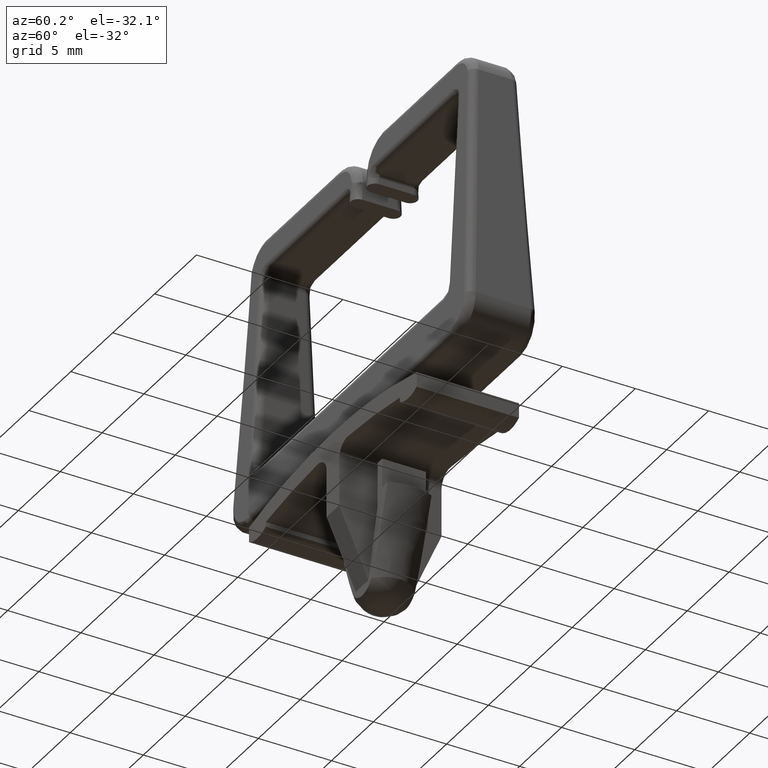
[diagram: clean part render]
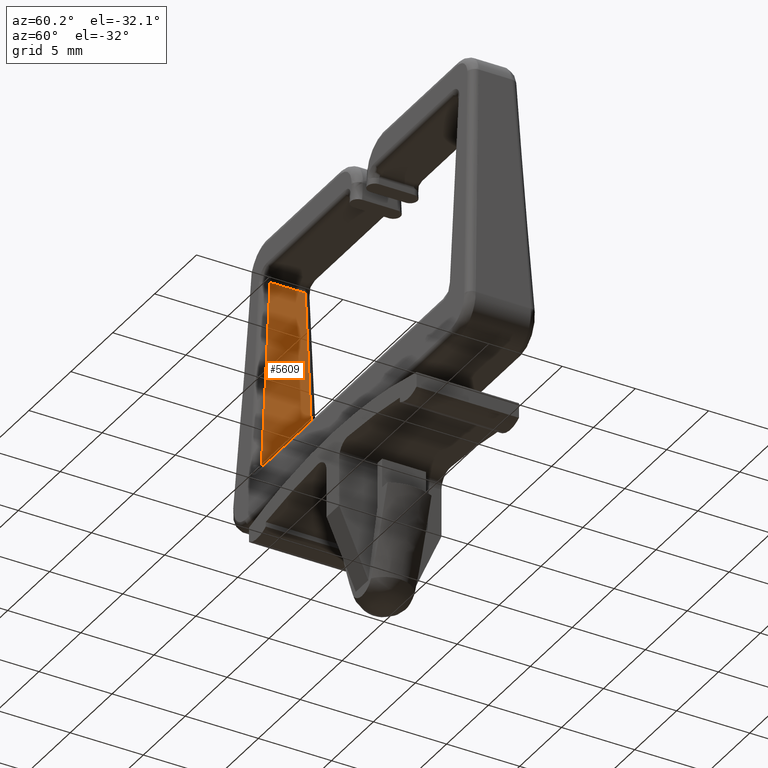
[diagram: same view with one face highlighted and labeled with its STEP entity id]
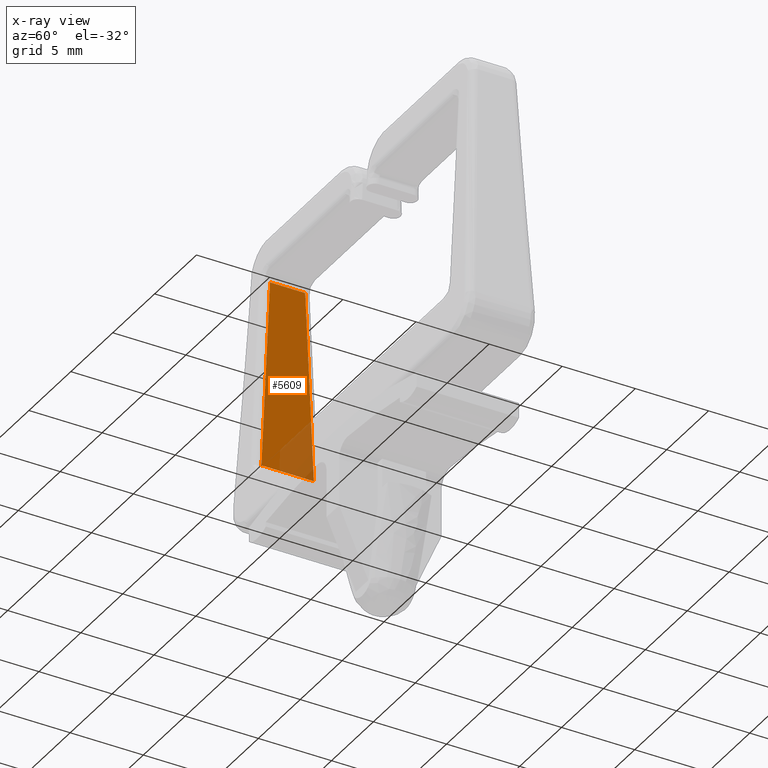
[diagram: x-ray of the same camera — body ghosted, the highlighted face saturated]
A machine part, auxiliary view. The second image highlights one B-rep face of the part: STEP entity #5609.
The next image is the same camera in x-ray: the body ghosted, the highlighted face saturated — about 16% of this face is hidden behind the body in this view.
In plain terms, the highlighted face is a freeform B-spline surface patch.
Its self-contained STEP definition (entity closure, byte-faithful):
#1271=CARTESIAN_POINT('',(-11.500000000000000,1.791121213136070,0.500000000000000));
#1272=VERTEX_POINT('',#1271);
#1338=CARTESIAN_POINT('',(-11.500000000000000,1.200479380177754,13.500000000000000));
#1339=VERTEX_POINT('',#1338);
#1355=CARTESIAN_POINT('',(-11.500000000000000,1.791121213136070,0.500000000000000));
#1356=CARTESIAN_POINT('',(-11.500000000000000,1.200479380177754,13.500000000000000));
#1357=QUASI_UNIFORM_CURVE('',1,(#1355,#1356),.UNSPECIFIED.,.F.,.U.);
#1358=EDGE_CURVE('',#1272,#1339,#1357,.T.);
#2888=CARTESIAN_POINT('',(-11.500000000000000,-1.200478505190450,13.500000000000000));
#2889=VERTEX_POINT('',#2888);
#2953=CARTESIAN_POINT('',(-11.500000000000000,-1.791120984124930,0.500000000000000));
#2954=VERTEX_POINT('',#2953);
#2970=CARTESIAN_POINT('',(-11.500000000000000,-1.200478505190450,13.500000000000000));
#2971=CARTESIAN_POINT('',(-11.500000000000000,-1.791120984124930,0.500000000000000));
#2972=QUASI_UNIFORM_CURVE('',1,(#2970,#2971),.UNSPECIFIED.,.F.,.U.);
#2973=EDGE_CURVE('',#2889,#2954,#2972,.T.);
#5583=CARTESIAN_POINT('',(-11.500000000000000,1.200479380177754,13.500000000000000));
#5584=CARTESIAN_POINT('',(-11.500000000000000,-1.200478505190450,13.500000000000000));
#5585=QUASI_UNIFORM_CURVE('',1,(#5583,#5584),.UNSPECIFIED.,.F.,.U.);
#5586=EDGE_CURVE('',#1339,#2889,#5585,.T.);
#5594=CARTESIAN_POINT('',(-11.500000000000000,-1.970054008562563,14.149349974803480));
#5595=CARTESIAN_POINT('',(-11.500000000000000,-1.970054008562563,-0.149350323490649));
#5596=CARTESIAN_POINT('',(-11.500000000000000,1.970054301629185,14.149349974803480));
#5597=CARTESIAN_POINT('',(-11.500000000000000,1.970054301629185,-0.149350323490649));
#5598=B_SPLINE_SURFACE_WITH_KNOTS('',1,1,((#5594,#5596),(#5595,#5597)),.UNSPECIFIED.,.F.,.F.,.U.,(2,2),(2,2),(0.0,14.298700298294129),(0.0,3.940108310191748),.UNSPECIFIED.);
#5599=CARTESIAN_POINT('',(-11.500000000000000,1.791121213136070,0.500000000000000));
#5600=CARTESIAN_POINT('',(-11.500000000000000,-1.791120984124930,0.500000000000000));
#5601=QUASI_UNIFORM_CURVE('',1,(#5599,#5600),.UNSPECIFIED.,.F.,.U.);
#5602=EDGE_CURVE('',#1272,#2954,#5601,.T.);
#5603=ORIENTED_EDGE('',*,*,#5602,.F.);
#5604=ORIENTED_EDGE('',*,*,#1358,.T.);
#5605=ORIENTED_EDGE('',*,*,#5586,.T.);
#5606=ORIENTED_EDGE('',*,*,#2973,.T.);
#5607=EDGE_LOOP('',(#5603,#5604,#5605,#5606));
#5608=FACE_OUTER_BOUND('',#5607,.T.);
#5609=ADVANCED_FACE('',(#5608),#5598,.T.);